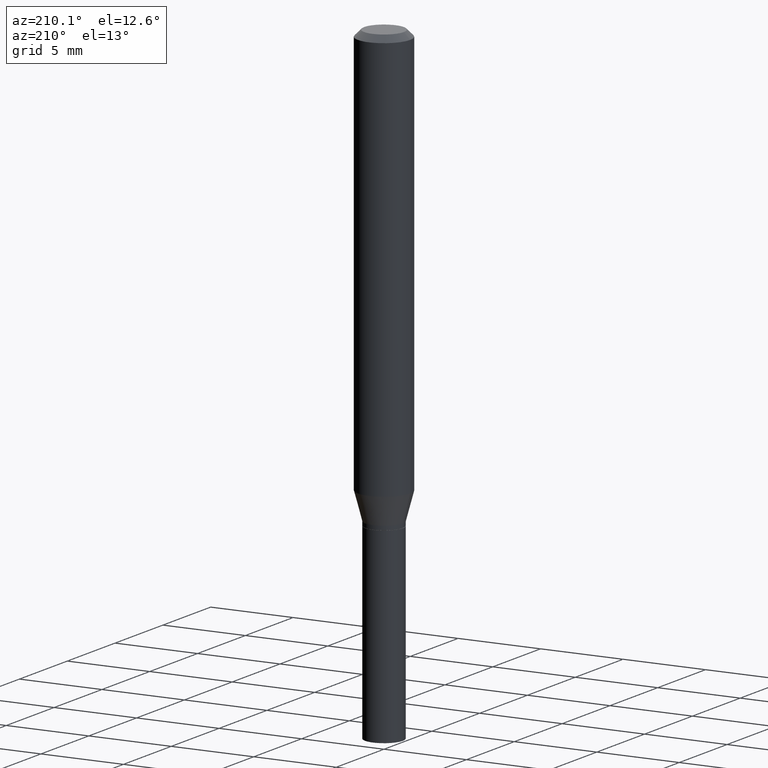
[diagram: clean part render]
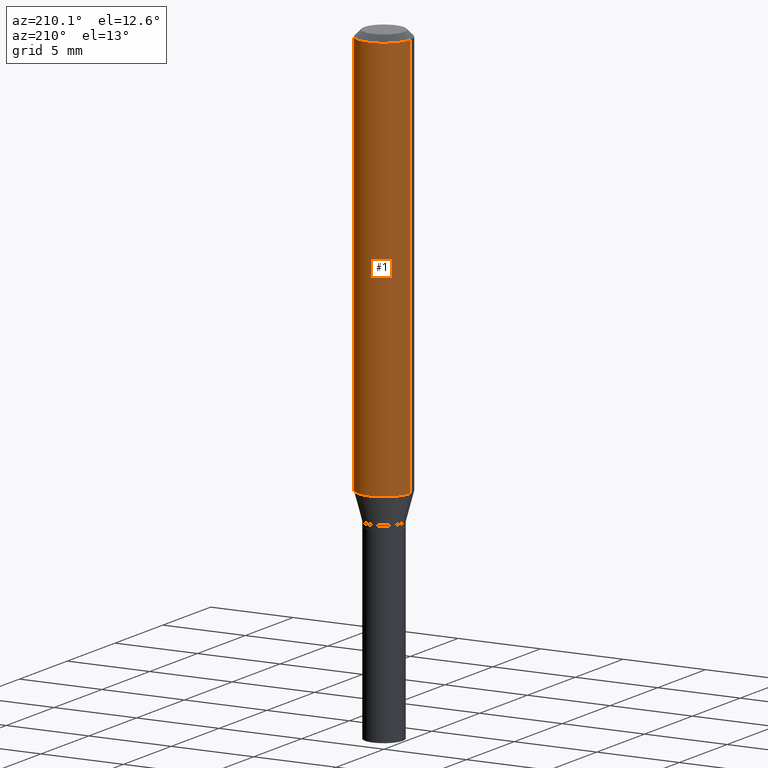
[diagram: same view with one face highlighted and labeled with its STEP entity id]
A machine part, auxiliary view. The second image highlights one B-rep face of the part: STEP entity #1.
In plain terms, the highlighted cylindrical surface (edge-blend (fillet) strip) has radius 1.5875 mm, axis along (-0, 0, 1).
Its self-contained STEP definition (entity closure, byte-faithful):
#1 = ADVANCED_FACE ( 'NONE', ( #351 ), #140, .T. ) ;
#16 = VERTEX_POINT ( 'NONE', #142 ) ;
#20 = CARTESIAN_POINT ( 'NONE',  ( 0.06250000000000000000, -3.839544009123042397E-15, -0.9746891108675448390 ) ) ;
#26 = VECTOR ( 'NONE', #50, 39.37007874015748143 ) ;
#47 = CIRCLE ( 'NONE', #96, 0.06250000000000000000 ) ;
#49 = ORIENTED_EDGE ( 'NONE', *, *, #305, .F. ) ;
#50 = DIRECTION ( 'NONE',  ( -2.445468806185136877E-29, 3.491481338843145188E-15, 1.000000000000000000 ) ) ;
#61 = CARTESIAN_POINT ( 'NONE',  ( 0.000000000000000000, 0.000000000000000000, 0.000000000000000000 ) ) ;
#62 = CARTESIAN_POINT ( 'NONE',  ( 2.383571816354907179E-29, -3.403108841767650728E-15, -0.9746891108675448390 ) ) ;
#72 = VERTEX_POINT ( 'NONE', #20 ) ;
#93 = EDGE_CURVE ( 'NONE', #16, #302, #236, .T. ) ;
#96 = AXIS2_PLACEMENT_3D ( 'NONE', #62, #451, #204 ) ;
#100 = CARTESIAN_POINT ( 'NONE',  ( -0.06250000000000000000, 4.440892098500626162E-16, -3.074334431409316114E-30 ) ) ;
#102 = VERTEX_POINT ( 'NONE', #169 ) ;
#103 = EDGE_CURVE ( 'NONE', #72, #16, #47, .T. ) ;
#111 = ORIENTED_EDGE ( 'NONE', *, *, #439, .F. ) ;
#120 = AXIS2_PLACEMENT_3D ( 'NONE', #61, #379, #422 ) ;
#123 = CARTESIAN_POINT ( 'NONE',  ( 0.06250000000000000000, -4.364351673553916694E-16, 3.047610484872459871E-30 ) ) ;
#140 = CYLINDRICAL_SURFACE ( 'NONE', #120, 0.06250000000000000000 ) ;
#142 = CARTESIAN_POINT ( 'NONE',  ( -0.06250000000000000000, -2.959019631917587717E-15, -0.9746891108675448390 ) ) ;
#169 = CARTESIAN_POINT ( 'NONE',  ( 0.06250000000000000000, -4.888073874380388472E-16, -0.01499999999999999944 ) ) ;
#175 = CIRCLE ( 'NONE', #441, 0.06250000000000000000 ) ;
#193 = DIRECTION ( 'NONE',  ( -2.445468806185136597E-29, 3.491481338843145583E-15, 1.000000000000000000 ) ) ;
#204 = DIRECTION ( 'NONE',  ( 1.000000000000000000, -6.982962677686270655E-15, 0.000000000000000000 ) ) ;
#233 = ORIENTED_EDGE ( 'NONE', *, *, #103, .T. ) ;
#236 = LINE ( 'NONE', #100, #238 ) ;
#238 = VECTOR ( 'NONE', #245, 39.37007874015748143 ) ;
#245 = DIRECTION ( 'NONE',  ( -2.445468806185136877E-29, 3.491481338843145188E-15, 1.000000000000000000 ) ) ;
#262 = LINE ( 'NONE', #123, #26 ) ;
#268 = EDGE_LOOP ( 'NONE', ( #233, #366, #49, #111 ) ) ;
#296 = DIRECTION ( 'NONE',  ( 1.000000000000000000, -6.982962677686266711E-15, 0.000000000000000000 ) ) ;
#302 = VERTEX_POINT ( 'NONE', #369 ) ;
#305 = EDGE_CURVE ( 'NONE', #102, #302, #175, .T. ) ;
#351 = FACE_OUTER_BOUND ( 'NONE', #268, .T. ) ;
#366 = ORIENTED_EDGE ( 'NONE', *, *, #93, .T. ) ;
#369 = CARTESIAN_POINT ( 'NONE',  ( -0.06250000000000000000, -1.283651321075086287E-15, -0.01499999999999999944 ) ) ;
#379 = DIRECTION ( 'NONE',  ( -2.445468806185136597E-29, 3.491481338843145583E-15, 1.000000000000000000 ) ) ;
#422 = DIRECTION ( 'NONE',  ( 1.000000000000000000, -6.982962677686266711E-15, 4.876176775795935793E-29 ) ) ;
#439 = EDGE_CURVE ( 'NONE', #72, #102, #262, .T. ) ;
#441 = AXIS2_PLACEMENT_3D ( 'NONE', #443, #193, #296 ) ;
#443 = CARTESIAN_POINT ( 'NONE',  ( 3.668203209277705088E-31, -5.237222008264718399E-17, -0.01499999999999999944 ) ) ;
#451 = DIRECTION ( 'NONE',  ( -2.445468806185136597E-29, 3.491481338843145583E-15, 1.000000000000000000 ) ) ;